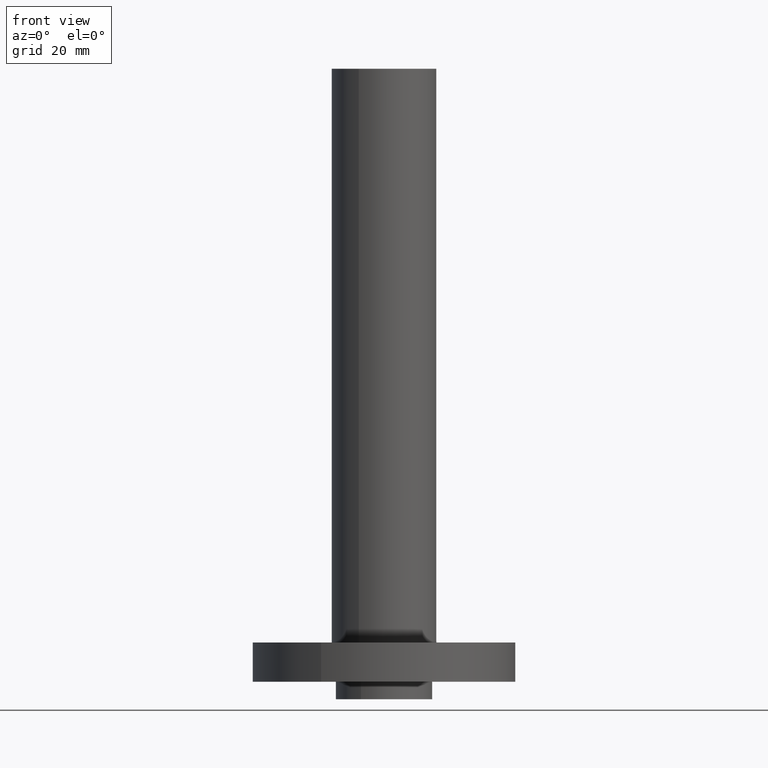
[diagram: clean part render]
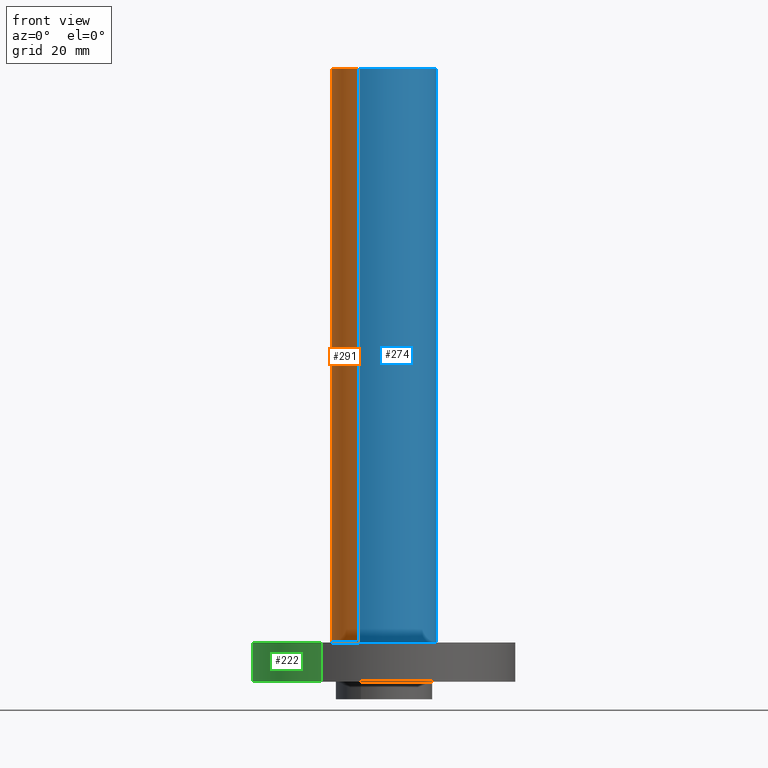
[diagram: same view with three faces highlighted in distinct colors, each labeled with its STEP entity id]
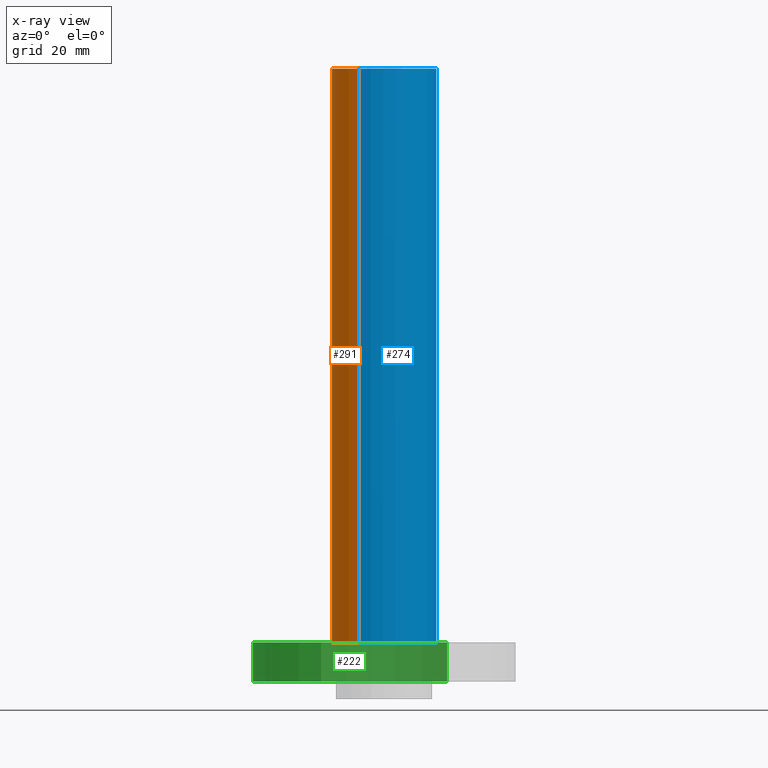
[diagram: x-ray of the same camera — body ghosted, the three highlighted faces saturated]
A machine part, front view with three faces highlighted in distinct colors.
The next image is the same camera in x-ray (body ghosted, the three faces saturated) — at least one of them is partly hidden behind the body in this view.
Their STEP definitions:

[orange] entity #291 — the highlighted cylindrical surface (partial cylindrical patch) has radius 19.05 mm, axis along (0, 0, -1).
#238=AXIS2_PLACEMENT_3D('Cylinder Axis2P3D',#235,#236,#237) ;
#277=AXIS2_PLACEMENT_3D('Circle Axis2P3D',#275,#276,$) ;
#282=AXIS2_PLACEMENT_3D('Circle Axis2P3D',#280,#281,$) ;
#235=CARTESIAN_POINT('Axis2P3D Location',(0.,0.,4.25000000002)) ;
#244=CARTESIAN_POINT('Vertex',(0.359569153955,0.65818692142,0.560000000002)) ;
#246=CARTESIAN_POINT('Vertex',(-0.359569153955,-0.65818692142,0.560000000002)) ;
#249=CARTESIAN_POINT('Line Origine',(0.359569153955,0.65818692142,4.65500000002)) ;
#253=CARTESIAN_POINT('Vertex',(0.359569153955,0.65818692142,8.75000000003)) ;
#260=CARTESIAN_POINT('Vertex',(-0.359569153955,-0.65818692142,8.75000000003)) ;
#263=CARTESIAN_POINT('Line Origine',(-0.359569153955,-0.65818692142,4.65500000002)) ;
#275=CARTESIAN_POINT('Axis2P3D Location',(0.,0.,0.560000000002)) ;
#280=CARTESIAN_POINT('Axis2P3D Location',(0.,0.,8.75000000003)) ;
#236=DIRECTION('Axis2P3D Direction',(0.,0.,-0.0393700787402)) ;
#237=DIRECTION('Axis2P3D XDirection',(-0.0188750212049,-0.0345504945626,0.)) ;
#250=DIRECTION('Vector Direction',(0.,0.,-0.0393700787402)) ;
#264=DIRECTION('Vector Direction',(0.,0.,-0.0393700787402)) ;
#276=DIRECTION('Axis2P3D Direction',(0.,0.,-0.0393700787402)) ;
#281=DIRECTION('Axis2P3D Direction',(0.,0.,-0.0393700787402)) ;
#251=VECTOR('Line Direction',#250,0.0393700787402) ;
#265=VECTOR('Line Direction',#264,0.0393700787402) ;
#286=ORIENTED_EDGE('',*,*,#279,.F.) ;
#287=ORIENTED_EDGE('',*,*,#267,.T.) ;
#288=ORIENTED_EDGE('',*,*,#284,.T.) ;
#289=ORIENTED_EDGE('',*,*,#255,.F.) ;
#291=ADVANCED_FACE('PartBody',(#290),#239,.T.) ;
#278=CIRCLE('generated circle',#277,0.750000000003) ;
#283=CIRCLE('generated circle',#282,0.750000000003) ;
#239=CYLINDRICAL_SURFACE('generated cylinder',#238,0.750000000003) ;
#255=EDGE_CURVE('',#245,#254,#252,.F.) ;
#267=EDGE_CURVE('',#247,#261,#266,.F.) ;
#279=EDGE_CURVE('',#247,#245,#278,.T.) ;
#284=EDGE_CURVE('',#261,#254,#283,.T.) ;
#285=EDGE_LOOP('',(#286,#287,#288,#289)) ;
#290=FACE_OUTER_BOUND('',#285,.T.) ;
#252=LINE('Line',#249,#251) ;
#266=LINE('Line',#263,#265) ;
#245=VERTEX_POINT('',#244) ;
#247=VERTEX_POINT('',#246) ;
#254=VERTEX_POINT('',#253) ;
#261=VERTEX_POINT('',#260) ;

[blue] entity #274 — the highlighted cylindrical surface (partial cylindrical patch) has radius 19.05 mm, axis along (0, 0, -1).
#238=AXIS2_PLACEMENT_3D('Cylinder Axis2P3D',#235,#236,#237) ;
#242=AXIS2_PLACEMENT_3D('Circle Axis2P3D',#240,#241,$) ;
#258=AXIS2_PLACEMENT_3D('Circle Axis2P3D',#256,#257,$) ;
#235=CARTESIAN_POINT('Axis2P3D Location',(0.,0.,4.25000000002)) ;
#240=CARTESIAN_POINT('Axis2P3D Location',(0.,0.,0.560000000002)) ;
#244=CARTESIAN_POINT('Vertex',(0.359569153955,0.65818692142,0.560000000002)) ;
#246=CARTESIAN_POINT('Vertex',(-0.359569153955,-0.65818692142,0.560000000002)) ;
#249=CARTESIAN_POINT('Line Origine',(0.359569153955,0.65818692142,4.65500000002)) ;
#253=CARTESIAN_POINT('Vertex',(0.359569153955,0.65818692142,8.75000000003)) ;
#256=CARTESIAN_POINT('Axis2P3D Location',(0.,0.,8.75000000003)) ;
#260=CARTESIAN_POINT('Vertex',(-0.359569153955,-0.65818692142,8.75000000003)) ;
#263=CARTESIAN_POINT('Line Origine',(-0.359569153955,-0.65818692142,4.65500000002)) ;
#236=DIRECTION('Axis2P3D Direction',(0.,0.,-0.0393700787402)) ;
#237=DIRECTION('Axis2P3D XDirection',(-0.0188750212049,-0.0345504945626,0.)) ;
#241=DIRECTION('Axis2P3D Direction',(0.,0.,-0.0393700787402)) ;
#250=DIRECTION('Vector Direction',(0.,0.,-0.0393700787402)) ;
#257=DIRECTION('Axis2P3D Direction',(0.,0.,-0.0393700787402)) ;
#264=DIRECTION('Vector Direction',(0.,0.,-0.0393700787402)) ;
#251=VECTOR('Line Direction',#250,0.0393700787402) ;
#265=VECTOR('Line Direction',#264,0.0393700787402) ;
#269=ORIENTED_EDGE('',*,*,#248,.F.) ;
#270=ORIENTED_EDGE('',*,*,#255,.T.) ;
#271=ORIENTED_EDGE('',*,*,#262,.T.) ;
#272=ORIENTED_EDGE('',*,*,#267,.F.) ;
#274=ADVANCED_FACE('PartBody',(#273),#239,.T.) ;
#243=CIRCLE('generated circle',#242,0.750000000003) ;
#259=CIRCLE('generated circle',#258,0.750000000003) ;
#239=CYLINDRICAL_SURFACE('generated cylinder',#238,0.750000000003) ;
#248=EDGE_CURVE('',#245,#247,#243,.T.) ;
#255=EDGE_CURVE('',#245,#254,#252,.F.) ;
#262=EDGE_CURVE('',#254,#261,#259,.T.) ;
#267=EDGE_CURVE('',#247,#261,#266,.F.) ;
#268=EDGE_LOOP('',(#269,#270,#271,#272)) ;
#273=FACE_OUTER_BOUND('',#268,.T.) ;
#252=LINE('Line',#249,#251) ;
#266=LINE('Line',#263,#265) ;
#245=VERTEX_POINT('',#244) ;
#247=VERTEX_POINT('',#246) ;
#254=VERTEX_POINT('',#253) ;
#261=VERTEX_POINT('',#260) ;

[green] entity #222 — the highlighted cylindrical surface (partial cylindrical patch) has radius 47.625 mm, axis along (0, 0, -1).
#82=AXIS2_PLACEMENT_3D('Circle Axis2P3D',#80,#81,$) ;
#195=AXIS2_PLACEMENT_3D('Cylinder Axis2P3D',#192,#193,#194) ;
#206=AXIS2_PLACEMENT_3D('Circle Axis2P3D',#204,#205,$) ;
#80=CARTESIAN_POINT('Axis2P3D Location',(0.,0.,0.)) ;
#84=CARTESIAN_POINT('Vertex',(-0.898922884886,-1.64546730355,0.)) ;
#86=CARTESIAN_POINT('Vertex',(0.898922884886,1.64546730355,0.)) ;
#192=CARTESIAN_POINT('Axis2P3D Location',(0.,0.,4.25000000002)) ;
#197=CARTESIAN_POINT('Line Origine',(-0.898922884886,-1.64546730355,0.280000000001)) ;
#201=CARTESIAN_POINT('Vertex',(-0.898922884886,-1.64546730355,0.560000000002)) ;
#204=CARTESIAN_POINT('Axis2P3D Location',(0.,0.,0.560000000002)) ;
#208=CARTESIAN_POINT('Vertex',(0.898922884886,1.64546730355,0.560000000002)) ;
#211=CARTESIAN_POINT('Line Origine',(0.898922884886,1.64546730355,0.280000000001)) ;
#81=DIRECTION('Axis2P3D Direction',(0.,0.,-0.0393700787402)) ;
#193=DIRECTION('Axis2P3D Direction',(0.,0.,-0.0393700787402)) ;
#194=DIRECTION('Axis2P3D XDirection',(0.0188750212049,0.0345504945626,0.)) ;
#198=DIRECTION('Vector Direction',(0.,0.,-0.0393700787402)) ;
#205=DIRECTION('Axis2P3D Direction',(0.,0.,-0.0393700787402)) ;
#212=DIRECTION('Vector Direction',(0.,0.,-0.0393700787402)) ;
#199=VECTOR('Line Direction',#198,0.0393700787402) ;
#213=VECTOR('Line Direction',#212,0.0393700787402) ;
#217=ORIENTED_EDGE('',*,*,#88,.F.) ;
#218=ORIENTED_EDGE('',*,*,#203,.T.) ;
#219=ORIENTED_EDGE('',*,*,#210,.T.) ;
#220=ORIENTED_EDGE('',*,*,#215,.F.) ;
#222=ADVANCED_FACE('PartBody',(#221),#196,.T.) ;
#83=CIRCLE('generated circle',#82,1.87500000001) ;
#207=CIRCLE('generated circle',#206,1.87500000001) ;
#196=CYLINDRICAL_SURFACE('generated cylinder',#195,1.87500000001) ;
#88=EDGE_CURVE('',#85,#87,#83,.T.) ;
#203=EDGE_CURVE('',#85,#202,#200,.F.) ;
#210=EDGE_CURVE('',#202,#209,#207,.T.) ;
#215=EDGE_CURVE('',#87,#209,#214,.F.) ;
#216=EDGE_LOOP('',(#217,#218,#219,#220)) ;
#221=FACE_OUTER_BOUND('',#216,.T.) ;
#200=LINE('Line',#197,#199) ;
#214=LINE('Line',#211,#213) ;
#85=VERTEX_POINT('',#84) ;
#87=VERTEX_POINT('',#86) ;
#202=VERTEX_POINT('',#201) ;
#209=VERTEX_POINT('',#208) ;